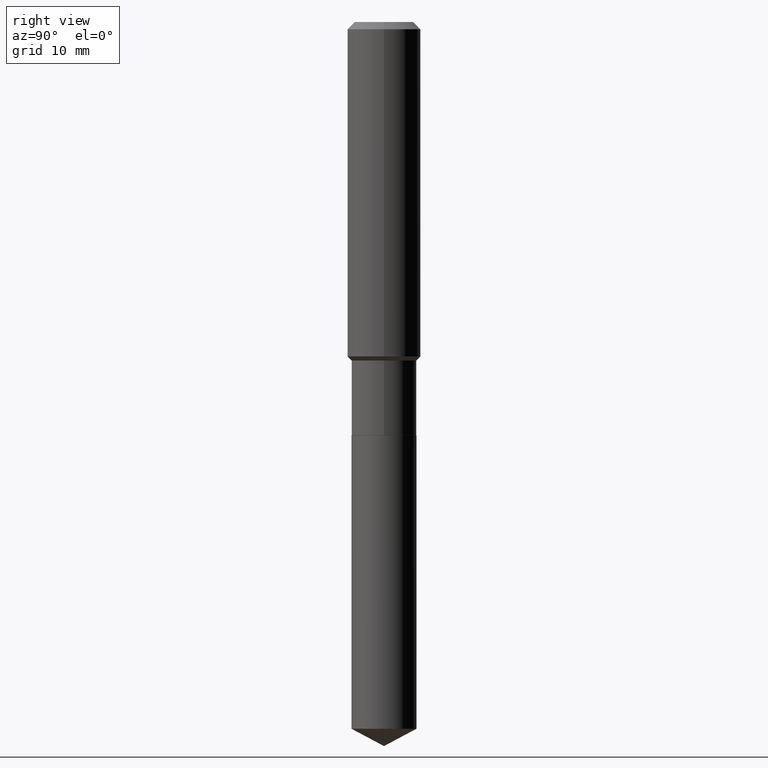
[diagram: clean part render]
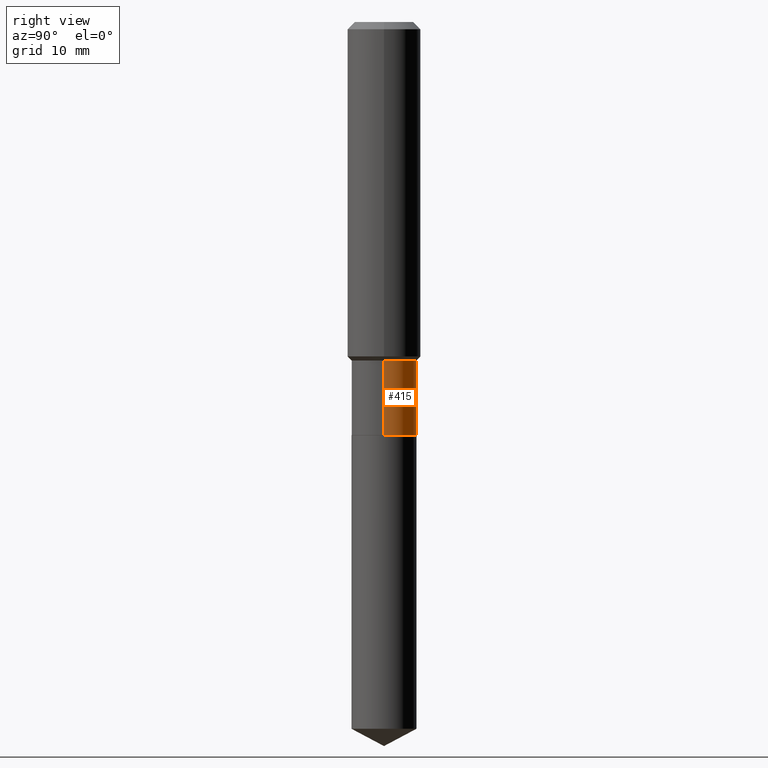
[diagram: same view with one face highlighted and labeled with its STEP entity id]
A machine part, right view. The second image highlights one B-rep face of the part: STEP entity #415.
In plain terms, the highlighted cylindrical surface (edge-blend (fillet) strip) has radius 3.5496 mm, axis along (-0, 0, 1).
Its self-contained STEP definition (entity closure, byte-faithful):
#11 = CARTESIAN_POINT ( 'NONE',  ( 4.340707130978617347E-29, -6.197379376446583794E-15, -1.775000000000000133 ) ) ;
#12 = AXIS2_PLACEMENT_3D ( 'NONE', #344, #17, #315 ) ;
#17 = DIRECTION ( 'NONE',  ( -2.445468806185136597E-29, 3.491481338843145583E-15, 1.000000000000000000 ) ) ;
#21 = VERTEX_POINT ( 'NONE', #301 ) ;
#29 = EDGE_CURVE ( 'NONE', #108, #215, #160, .T. ) ;
#40 = EDGE_CURVE ( 'NONE', #21, #289, #488, .T. ) ;
#51 = DIRECTION ( 'NONE',  ( 1.000000000000000000, -6.982962677686269077E-15, 0.000000000000000000 ) ) ;
#73 = ORIENTED_EDGE ( 'NONE', *, *, #355, .T. ) ;
#75 = CIRCLE ( 'NONE', #114, 0.1397499999999999853 ) ;
#97 = CIRCLE ( 'NONE', #123, 0.1397499999999999298 ) ;
#108 = VERTEX_POINT ( 'NONE', #462 ) ;
#114 = AXIS2_PLACEMENT_3D ( 'NONE', #11, #198, #348 ) ;
#123 = AXIS2_PLACEMENT_3D ( 'NONE', #308, #467, #51 ) ;
#149 = CARTESIAN_POINT ( 'NONE',  ( -0.1397499999999999298, -4.644187722404462094E-15, -1.454100000000000170 ) ) ;
#153 = CARTESIAN_POINT ( 'NONE',  ( -0.1397499999999999576, 9.929834732247397084E-16, -6.874211788631229584E-30 ) ) ;
#160 = LINE ( 'NONE', #229, #476 ) ;
#198 = DIRECTION ( 'NONE',  ( -2.445468806185136597E-29, 3.491481338843145583E-15, 1.000000000000000000 ) ) ;
#215 = VERTEX_POINT ( 'NONE', #457 ) ;
#229 = CARTESIAN_POINT ( 'NONE',  ( 0.1397499999999999576, -9.758690342066554020E-16, 6.814457044174817776E-30 ) ) ;
#289 = VERTEX_POINT ( 'NONE', #149 ) ;
#294 = ORIENTED_EDGE ( 'NONE', *, *, #40, .T. ) ;
#298 = DIRECTION ( 'NONE',  ( -2.445468806185136877E-29, 3.491481338843145188E-15, 1.000000000000000000 ) ) ;
#301 = CARTESIAN_POINT ( 'NONE',  ( -0.1397499999999999853, -4.644187722404462094E-15, -1.775000000000000133 ) ) ;
#308 = CARTESIAN_POINT ( 'NONE',  ( 3.555956191073807244E-29, -5.076963014811818627E-15, -1.454100000000000170 ) ) ;
#315 = DIRECTION ( 'NONE',  ( 1.000000000000000000, -6.982962677686265922E-15, 4.876176775795935232E-29 ) ) ;
#331 = EDGE_CURVE ( 'NONE', #215, #289, #97, .T. ) ;
#338 = DIRECTION ( 'NONE',  ( -2.445468806185136877E-29, 3.491481338843145188E-15, 1.000000000000000000 ) ) ;
#344 = CARTESIAN_POINT ( 'NONE',  ( 0.000000000000000000, 0.000000000000000000, 0.000000000000000000 ) ) ;
#348 = DIRECTION ( 'NONE',  ( 1.000000000000000000, -6.982962677686265922E-15, 0.000000000000000000 ) ) ;
#355 = EDGE_CURVE ( 'NONE', #108, #21, #75, .T. ) ;
#415 = ADVANCED_FACE ( 'NONE', ( #422 ), #463, .T. ) ;
#422 = FACE_OUTER_BOUND ( 'NONE', #429, .T. ) ;
#425 = VECTOR ( 'NONE', #298, 39.37007874015748143 ) ;
#429 = EDGE_LOOP ( 'NONE', ( #73, #294, #453, #479 ) ) ;
#453 = ORIENTED_EDGE ( 'NONE', *, *, #331, .F. ) ;
#457 = CARTESIAN_POINT ( 'NONE',  ( 0.1397499999999999298, -6.052832049018473832E-15, -1.454100000000000170 ) ) ;
#462 = CARTESIAN_POINT ( 'NONE',  ( 0.1397499999999999853, -7.173248410653239787E-15, -1.775000000000000133 ) ) ;
#463 = CYLINDRICAL_SURFACE ( 'NONE', #12, 0.1397499999999999576 ) ;
#467 = DIRECTION ( 'NONE',  ( -2.445468806185136597E-29, 3.491481338843145583E-15, 1.000000000000000000 ) ) ;
#476 = VECTOR ( 'NONE', #338, 39.37007874015748143 ) ;
#479 = ORIENTED_EDGE ( 'NONE', *, *, #29, .F. ) ;
#488 = LINE ( 'NONE', #153, #425 ) ;